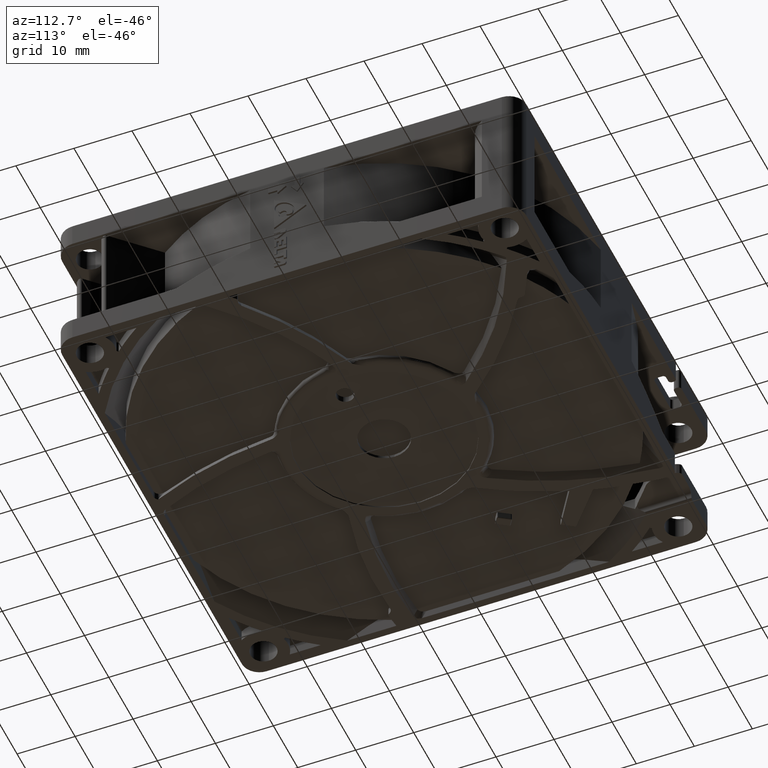
[diagram: clean part render]
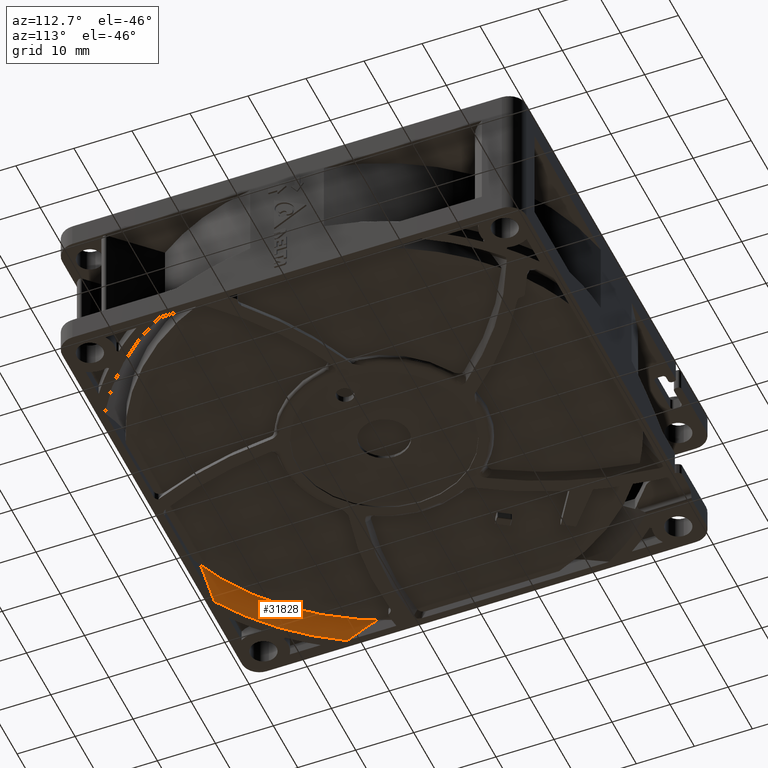
[diagram: same view with one face highlighted and labeled with its STEP entity id]
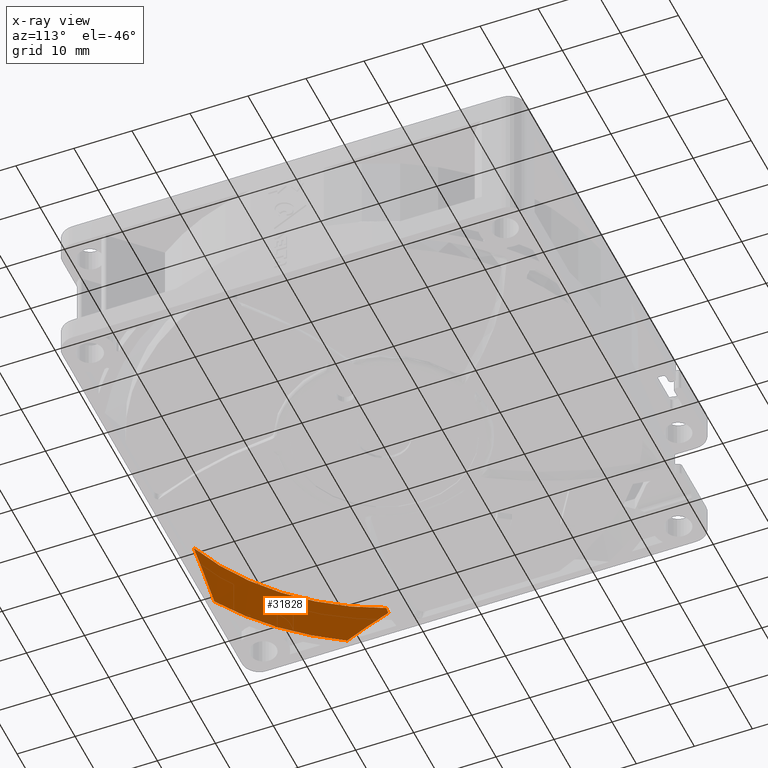
[diagram: x-ray of the same camera — body ghosted, the highlighted face saturated]
A machine part, auxiliary view. The second image highlights one B-rep face of the part: STEP entity #31828.
The next image is the same camera in x-ray: the body ghosted, the highlighted face saturated — about 0% of this face is hidden behind the body in this view.
In plain terms, the highlighted conical surface has half-angle 41.878 deg.
Its self-contained STEP definition (entity closure, byte-faithful):
#618 = DIRECTION ( 'NONE',  ( 0.0000000000000000000, 0.0000000000000000000, 1.000000000000000000 ) ) ;
#3067 = VERTEX_POINT ( 'NONE', #21747 ) ;
#4042 = CARTESIAN_POINT ( 'NONE',  ( 0.0000000000000000000, 0.0000000000000000000, -25.39999999999999100 ) ) ;
#6919 = B_SPLINE_CURVE_WITH_KNOTS ( 'NONE', 3,
 ( #10375, #16078, #24663, #35990 ),
 .UNSPECIFIED., .F., .F.,
 ( 4, 4 ),
 ( 0.0000000000000000000, 0.0008331130458514208800 ),
 .UNSPECIFIED. ) ;
#7079 = CARTESIAN_POINT ( 'NONE',  ( 0.0000000000000000000, 0.0000000000000000000, -18.14999999999999900 ) ) ;
#7540 = CIRCLE ( 'NONE', #20860, 41.15299496769456100 ) ;
#9490 = CONICAL_SURFACE ( 'NONE', #26429, 38.29999999999999700, 0.7309067071567180200 ) ;
#9557 = CARTESIAN_POINT ( 'NONE',  ( -19.80010381962150800, -38.70000000000002400, -23.84429393820987300 ) ) ;
#10375 = CARTESIAN_POINT ( 'NONE',  ( -38.69999999999998200, -15.45757416197640300, -21.91202729981148800 ) ) ;
#10660 = ORIENTED_EDGE ( 'NONE', *, *, #22841, .T. ) ;
#10747 = CARTESIAN_POINT ( 'NONE',  ( -38.69999999999998200, -15.45757416197640300, -21.91202729981148800 ) ) ;
#11453 = VERTEX_POINT ( 'NONE', #20135 ) ;
#12005 = VERTEX_POINT ( 'NONE', #32153 ) ;
#13364 = EDGE_CURVE ( 'NONE', #20574, #11453, #22682, .T. ) ;
#15449 = EDGE_CURVE ( 'NONE', #12005, #3067, #7540, .T. ) ;
#15468 = DIRECTION ( 'NONE',  ( -1.000000000000000000, 0.0000000000000000000, 0.0000000000000000000 ) ) ;
#15837 = ORIENTED_EDGE ( 'NONE', *, *, #15449, .T. ) ;
#16078 = CARTESIAN_POINT ( 'NONE',  ( -38.50244700855991900, -15.48511039751028500, -21.71879131149403400 ) ) ;
#16246 = ORIENTED_EDGE ( 'NONE', *, *, #13364, .T. ) ;
#16419 = CARTESIAN_POINT ( 'NONE',  ( -38.69999999999998200, -15.45757416197640300, -21.91202729981148800 ) ) ;
#16601 = FACE_OUTER_BOUND ( 'NONE', #16711, .T. ) ;
#16711 = EDGE_LOOP ( 'NONE', ( #15837, #33304, #16246, #20350, #10660 ) ) ;
#18938 = CARTESIAN_POINT ( 'NONE',  ( -38.69999999999998200, -20.25870253774094500, -24.10197804160453600 ) ) ;
#19020 = EDGE_CURVE ( 'NONE', #3067, #20574, #35522, .T. ) ;
#20135 = CARTESIAN_POINT ( 'NONE',  ( -38.69999999999997400, -22.56878375101329600, -25.39999999999999100 ) ) ;
#20350 = ORIENTED_EDGE ( 'NONE', *, *, #22785, .T. ) ;
#20574 = VERTEX_POINT ( 'NONE', #26245 ) ;
#20860 = AXIS2_PLACEMENT_3D ( 'NONE', #26021, #618, #15468 ) ;
#20940 = VERTEX_POINT ( 'NONE', #16419 ) ;
#21079 = AXIS2_PLACEMENT_3D ( 'NONE', #4042, #29147, #31895 ) ;
#21095 = CARTESIAN_POINT ( 'NONE',  ( -22.56878375101322500, -38.70000000000002400, -25.39999999999999900 ) ) ;
#21617 = DIRECTION ( 'NONE',  ( -1.000000000000000000, 0.0000000000000000000, 0.0000000000000000000 ) ) ;
#21747 = CARTESIAN_POINT ( 'NONE',  ( -13.99567771889555700, -38.70000000000002400, -21.33218669473756200 ) ) ;
#22682 = CIRCLE ( 'NONE', #21079, 44.79999999999999700 ) ;
#22785 = EDGE_CURVE ( 'NONE', #11453, #20940, #32407, .T. ) ;
#22841 = EDGE_CURVE ( 'NONE', #20940, #12005, #6919, .T. ) ;
#23591 = CARTESIAN_POINT ( 'NONE',  ( -16.95703523903759100, -38.70000000000002400, -22.45551830098025200 ) ) ;
#24663 = CARTESIAN_POINT ( 'NONE',  ( -38.30482465303796900, -15.51176745503103800, -21.52551202483534000 ) ) ;
#25152 = CARTESIAN_POINT ( 'NONE',  ( -38.69999999999998200, -17.89644120181677400, -22.92104988881618900 ) ) ;
#26021 = CARTESIAN_POINT ( 'NONE',  ( 0.0000000000000000000, 0.0000000000000000000, -21.33218669473624400 ) ) ;
#26245 = CARTESIAN_POINT ( 'NONE',  ( -22.56878375101322500, -38.70000000000002400, -25.39999999999999900 ) ) ;
#26429 = AXIS2_PLACEMENT_3D ( 'NONE', #7079, #32927, #21617 ) ;
#26905 = CARTESIAN_POINT ( 'NONE',  ( -38.69999999999997400, -22.56878375101329600, -25.39999999999999100 ) ) ;
#26963 = CARTESIAN_POINT ( 'NONE',  ( -13.99567771889555700, -38.70000000000002400, -21.33218669473756200 ) ) ;
#29147 = DIRECTION ( 'NONE',  ( -0.0000000000000000000, -0.0000000000000000000, -1.000000000000000000 ) ) ;
#31828 = ADVANCED_FACE ( 'NONE', ( #16601 ), #9490, .F. ) ;
#31895 = DIRECTION ( 'NONE',  ( -1.000000000000000000, 0.0000000000000000000, 0.0000000000000000000 ) ) ;
#32153 = CARTESIAN_POINT ( 'NONE',  ( -38.10713528983748000, -15.53754275338026700, -21.33218669473627900 ) ) ;
#32407 = B_SPLINE_CURVE_WITH_KNOTS ( 'NONE', 3,
 ( #26905, #18938, #25152, #10747 ),
 .UNSPECIFIED., .F., .F.,
 ( 4, 4 ),
 ( 0.05949471807534526000, 0.06739098461252943100 ),
 .UNSPECIFIED. ) ;
#32927 = DIRECTION ( 'NONE',  ( -0.0000000000000000000, -0.0000000000000000000, -1.000000000000000000 ) ) ;
#33304 = ORIENTED_EDGE ( 'NONE', *, *, #19020, .T. ) ;
#35522 = B_SPLINE_CURVE_WITH_KNOTS ( 'NONE', 3,
 ( #26963, #23591, #9557, #21095 ),
 .UNSPECIFIED., .F., .F.,
 ( 4, 4 ),
 ( 0.06195888570567419100, 0.07140925789907579000 ),
 .UNSPECIFIED. ) ;
#35990 = CARTESIAN_POINT ( 'NONE',  ( -38.10713528983748000, -15.53754275338026700, -21.33218669473627900 ) ) ;